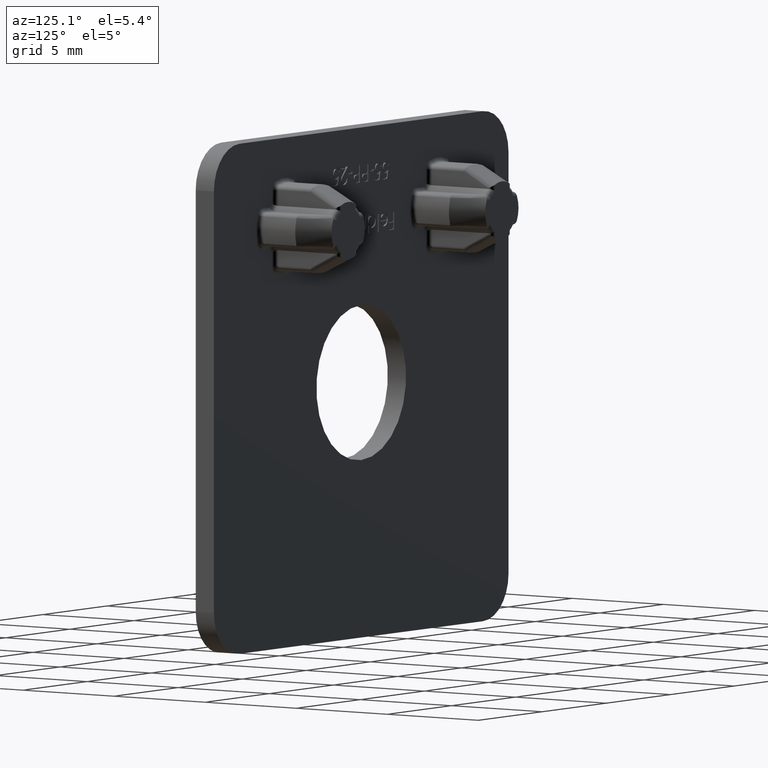
[diagram: clean part render]
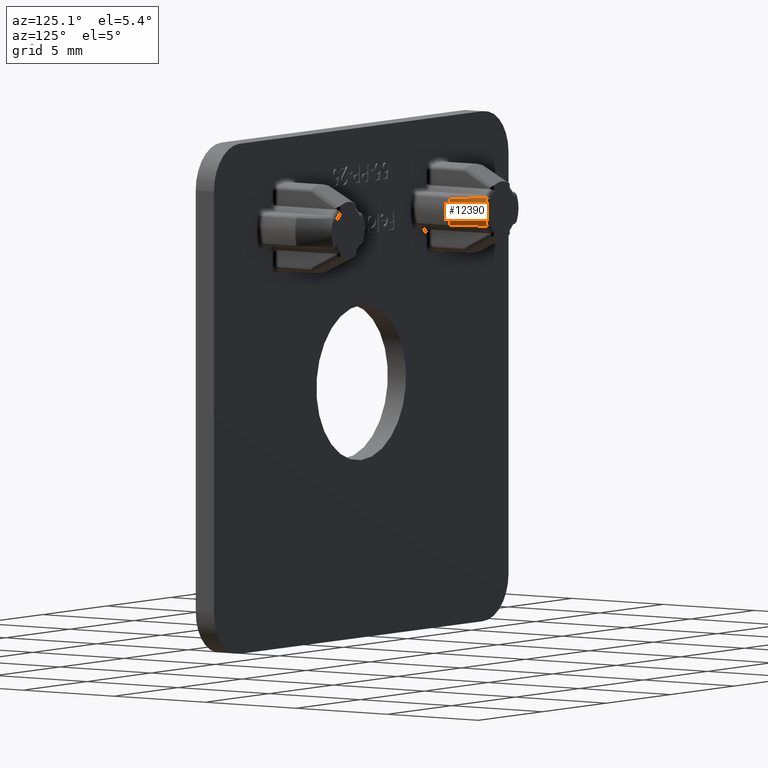
[diagram: same view with one face highlighted and labeled with its STEP entity id]
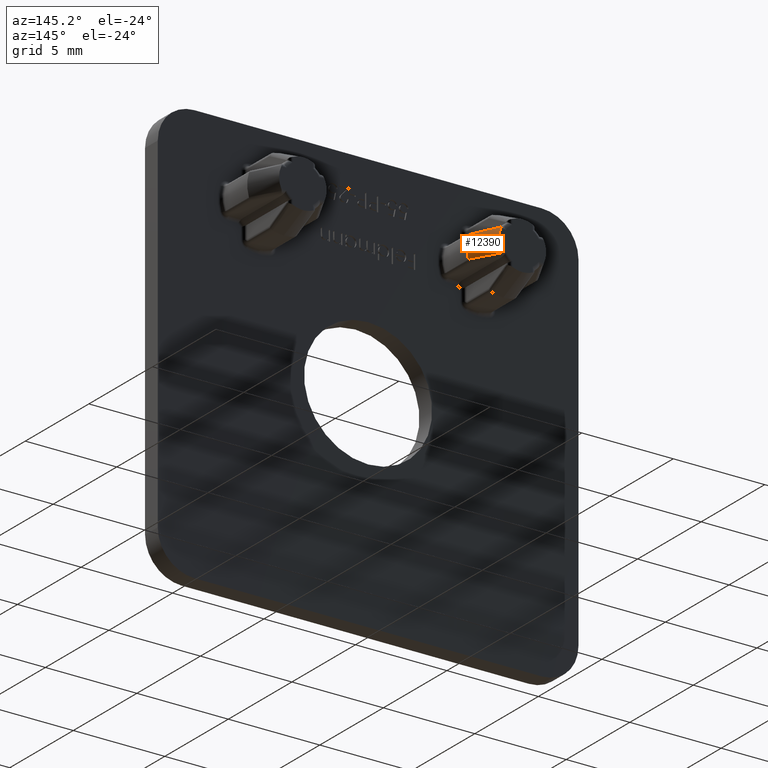
[diagram: same view with one face highlighted and labeled with its STEP entity id]
A machine part, auxiliary view. The second image highlights one B-rep face of the part: STEP entity #12390.
A second angle (auxiliary view) of the same face is appended — the face is thin or edge-on in the first view.
In plain terms, the highlighted conical surface has half-angle 25.017 deg.
Its self-contained STEP definition (entity closure, byte-faithful):
#25 = CARTESIAN_POINT ( 'NONE',  ( -4.856510200645464800, 4.479432266672199100, 8.138340600387799400 ) ) ;
#60 = CARTESIAN_POINT ( 'NONE',  ( -4.822078101061023000, 4.500000000000000900, 6.950000000000000200 ) ) ;
#594 = VERTEX_POINT ( 'NONE', #16013 ) ;
#661 = DIRECTION ( 'NONE',  ( -2.668805347656626100E-015, 0.0000000000000000000, -1.000000000000000000 ) ) ;
#844 = B_SPLINE_CURVE_WITH_KNOTS ( 'NONE', 3,
 ( #1414, #11926, #2720, #15581 ),
 .UNSPECIFIED., .F., .F.,
 ( 4, 4 ),
 ( 0.0000000000000000000, 9.724470943309260000E-005 ),
 .UNSPECIFIED. ) ;
#1032 = VERTEX_POINT ( 'NONE', #2782 ) ;
#1414 = CARTESIAN_POINT ( 'NONE',  ( -4.822078101061023000, 4.500000000000000900, 8.050000000000000700 ) ) ;
#2296 = ORIENTED_EDGE ( 'NONE', *, *, #8255, .T. ) ;
#2596 = AXIS2_PLACEMENT_3D ( 'NONE', #3948, #7811, #4049 ) ;
#2720 = CARTESIAN_POINT ( 'NONE',  ( -4.848095368211756000, 4.493470893263236100, 8.109826162189186500 ) ) ;
#2782 = CARTESIAN_POINT ( 'NONE',  ( -4.856510200645465700, 4.479432266672200000, 6.861659399612201500 ) ) ;
#3009 = ORIENTED_EDGE ( 'NONE', *, *, #6040, .F. ) ;
#3057 = CIRCLE ( 'NONE', #3076, 1.300000000000000000 ) ;
#3076 = AXIS2_PLACEMENT_3D ( 'NONE', #3138, #15822, #661 ) ;
#3138 = CARTESIAN_POINT ( 'NONE',  ( -5.999999999999997300, 4.500000000000000900, 7.500000000000000900 ) ) ;
#3923 = CARTESIAN_POINT ( 'NONE',  ( -4.339467805700302900, 3.497576452367087400, 8.111803726913537500 ) ) ;
#3948 = CARTESIAN_POINT ( 'NONE',  ( -5.999999999999997300, 4.500000000000000900, 7.500000000000000900 ) ) ;
#4049 = DIRECTION ( 'NONE',  ( 0.0000000000000000000, 0.0000000000000000000, -1.000000000000000000 ) ) ;
#4419 = CARTESIAN_POINT ( 'NONE',  ( -4.856510200645465700, 4.479432266672200000, 6.861659399612201500 ) ) ;
#4944 = VERTEX_POINT ( 'NONE', #16174 ) ;
#5634 = CARTESIAN_POINT ( 'NONE',  ( -4.856510200645465700, 4.479432266672200000, 6.861659399612201500 ) ) ;
#6040 = EDGE_CURVE ( 'NONE', #594, #13991, #8908, .T. ) ;
#6192 = EDGE_CURVE ( 'NONE', #16079, #16428, #3057, .T. ) ;
#6255 = EDGE_LOOP ( 'NONE', ( #9864, #15566, #11783, #2296, #10847, #3009 ) ) ;
#6671 = EDGE_CURVE ( 'NONE', #1032, #16428, #6927, .T. ) ;
#6927 = B_SPLINE_CURVE_WITH_KNOTS ( 'NONE', 3,
 ( #4419, #15988, #7172, #10852 ),
 .UNSPECIFIED., .F., .F.,
 ( 4, 4 ),
 ( 0.0000000000000000000, 9.718721003362957000E-005 ),
 .UNSPECIFIED. ) ;
#7172 = CARTESIAN_POINT ( 'NONE',  ( -4.835980133255028500, 4.500000000000000900, 6.920226348798048700 ) ) ;
#7540 = EDGE_CURVE ( 'NONE', #594, #1032, #8058, .T. ) ;
#7811 = DIRECTION ( 'NONE',  ( 0.0000000000000000000, -1.000000000000000000, 0.0000000000000000000 ) ) ;
#7933 = AXIS2_PLACEMENT_3D ( 'NONE', #8672, #14960, #15068 ) ;
#8058 = B_SPLINE_CURVE_WITH_KNOTS ( 'NONE', 3,
 ( #10846, #13357, #15737, #5634 ),
 .UNSPECIFIED., .F., .F.,
 ( 4, 4 ),
 ( 0.0000000000000000000, 0.001665057874310615400 ),
 .UNSPECIFIED. ) ;
#8255 = EDGE_CURVE ( 'NONE', #16079, #4944, #844, .T. ) ;
#8672 = CARTESIAN_POINT ( 'NONE',  ( -5.999999999999997300, 2.999999999999987100, 7.500000000000000900 ) ) ;
#8908 = CIRCLE ( 'NONE', #7933, 2.000000000000002700 ) ;
#9598 = B_SPLINE_CURVE_WITH_KNOTS ( 'NONE', 3,
 ( #25, #11495, #3923, #16439 ),
 .UNSPECIFIED., .F., .F.,
 ( 4, 4 ),
 ( 2.353905157409623000E-005, 0.001688471526350463800 ),
 .UNSPECIFIED. ) ;
#9864 = ORIENTED_EDGE ( 'NONE', *, *, #7540, .T. ) ;
#10337 = FACE_OUTER_BOUND ( 'NONE', #6255, .T. ) ;
#10456 = EDGE_CURVE ( 'NONE', #4944, #13991, #9598, .T. ) ;
#10846 = CARTESIAN_POINT ( 'NONE',  ( -4.093639845866605700, 2.999999999999987100, 6.895193450157393000 ) ) ;
#10847 = ORIENTED_EDGE ( 'NONE', *, *, #10456, .T. ) ;
#10852 = CARTESIAN_POINT ( 'NONE',  ( -4.822078101061023000, 4.500000000000000900, 6.950000000000000200 ) ) ;
#11495 = CARTESIAN_POINT ( 'NONE',  ( -4.587336454376058200, 3.994305582385310400, 8.120616101123541600 ) ) ;
#11753 = CARTESIAN_POINT ( 'NONE',  ( -4.822078101061023000, 4.500000000000000900, 8.050000000000000700 ) ) ;
#11783 = ORIENTED_EDGE ( 'NONE', *, *, #6192, .F. ) ;
#11926 = CARTESIAN_POINT ( 'NONE',  ( -4.835966900600264600, 4.500000000000000900, 8.079745311140447600 ) ) ;
#12390 = ADVANCED_FACE ( 'NONE', ( #10337 ), #12556, .T. ) ;
#12556 = CONICAL_SURFACE ( 'NONE', #2596, 1.300000000000000000, 0.4366271598135390600 ) ;
#13357 = CARTESIAN_POINT ( 'NONE',  ( -4.339467805700280700, 3.497576452367043000, 6.888196273086465200 ) ) ;
#13991 = VERTEX_POINT ( 'NONE', #15845 ) ;
#14960 = DIRECTION ( 'NONE',  ( 0.0000000000000000000, -1.000000000000000000, 0.0000000000000000000 ) ) ;
#15068 = DIRECTION ( 'NONE',  ( 0.0000000000000000000, 0.0000000000000000000, -1.000000000000000000 ) ) ;
#15566 = ORIENTED_EDGE ( 'NONE', *, *, #6671, .T. ) ;
#15581 = CARTESIAN_POINT ( 'NONE',  ( -4.856510200645464800, 4.479432266672199100, 8.138340600387799400 ) ) ;
#15737 = CARTESIAN_POINT ( 'NONE',  ( -4.587336454376058200, 3.994305582385310400, 6.879383898876461100 ) ) ;
#15822 = DIRECTION ( 'NONE',  ( 0.0000000000000000000, 1.000000000000000000, -0.0000000000000000000 ) ) ;
#15845 = CARTESIAN_POINT ( 'NONE',  ( -4.093639845866607500, 2.999999999999987100, 8.104806549842615800 ) ) ;
#15988 = CARTESIAN_POINT ( 'NONE',  ( -4.848084249546647400, 4.493489442745762100, 6.890211514436154900 ) ) ;
#16013 = CARTESIAN_POINT ( 'NONE',  ( -4.093639845866605700, 2.999999999999987100, 6.895193450157393000 ) ) ;
#16079 = VERTEX_POINT ( 'NONE', #11753 ) ;
#16174 = CARTESIAN_POINT ( 'NONE',  ( -4.856510200645464800, 4.479432266672199100, 8.138340600387799400 ) ) ;
#16428 = VERTEX_POINT ( 'NONE', #60 ) ;
#16439 = CARTESIAN_POINT ( 'NONE',  ( -4.093639845866607500, 2.999999999999987100, 8.104806549842615800 ) ) ;